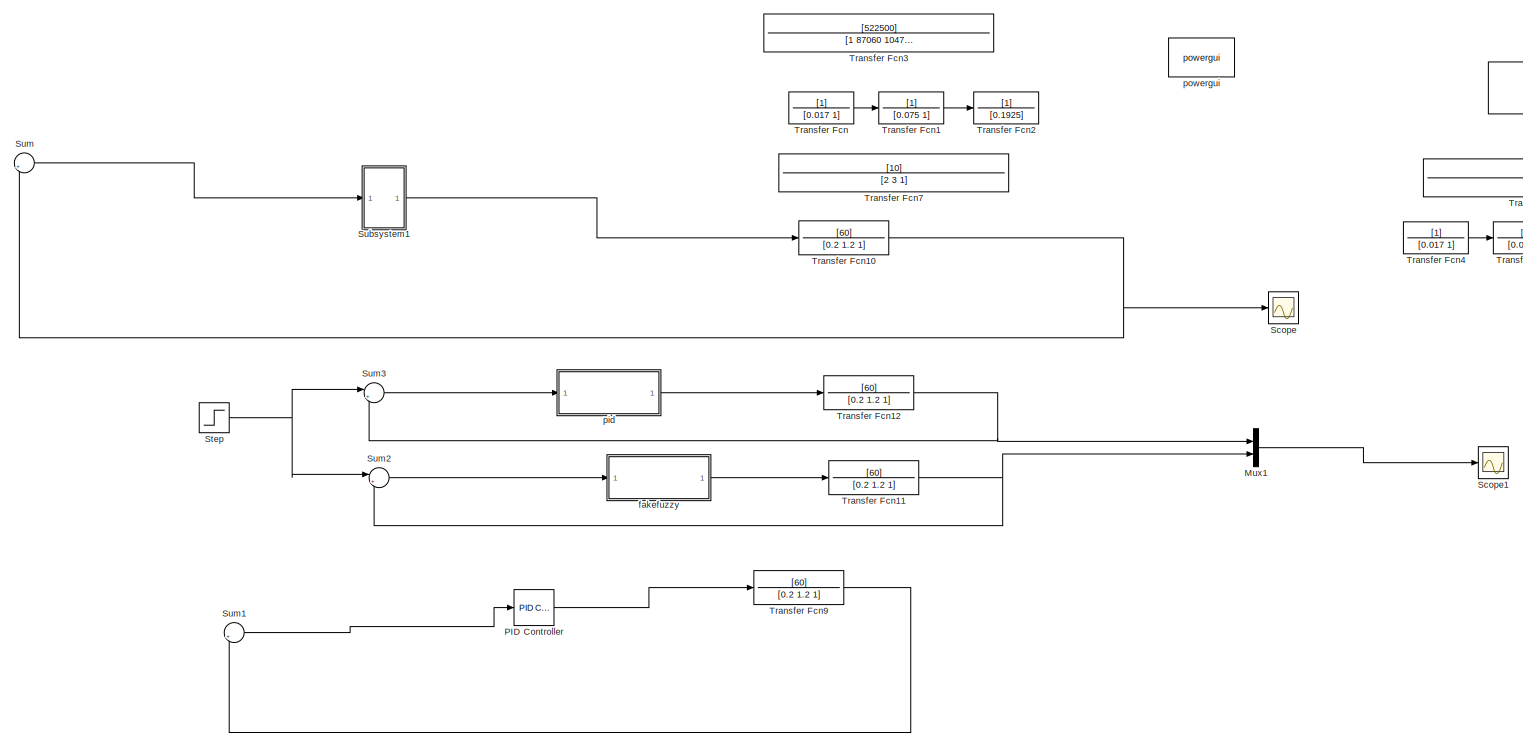
[diagram: root canvas - part 1/2, most of the canvas]
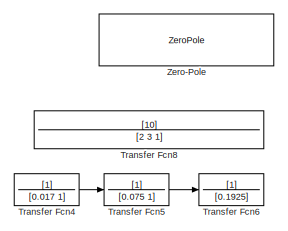
[diagram: root canvas - part 2/2, top right region]
MODEL slx_5aa0a6f4366a
KIND model
BLOCK [Mux] Mux1
  DisplayOption = bar
  Inputs = 2
  Ports = [2, 1]
BLOCK [Reference] PID Controller  REF=simulink/Continuous/PID Controller
  AntiWindupMode = none
  Controller = PID
  D = 0.0111808329497982
  DOutDataTypeStr = Inherit: Inherit via internal rule
  DOutMax = []
  DOutMin = []
  DParamDataTypeStr = Inherit: Inherit via internal rule
  DParamMax = []
  DParamMin = []
  DifferentiatorICPrevScaledInput = 0
  DifferentiatorOutDataTypeStr = Inherit: Inherit via internal rule
  DifferentiatorOutMax = []
  DifferentiatorOutMin = []
  ExternalReset = none
  FilterContinuousStateAttributes = ''
  FilterMethod = Forward Euler
  FilterOutDataTypeStr = Inherit: Inherit via internal rule
  FilterOutMax = []
  FilterOutMin = []
  FilterRTWStateStorageClass = Auto
  FilterStateMustResolveToSignalObject = off
  Form = Parallel
  I = 0.100100462071738
  IOutDataTypeStr = Inherit: Inherit via internal rule
  IOutMax = []
  IOutMin = []
  IParamDataTypeStr = Inherit: Inherit via internal rule
  IParamMax = []
  IParamMin = []
  IgnoreLimit = off
  InitialConditionForFilter = 0
  InitialConditionForIntegrator = 0
  InitialConditionSource = internal
  IntegratorContinuousStateAttributes = ''
  IntegratorMethod = Forward Euler
  IntegratorOutDataTypeStr = Inherit: Inherit via internal rule
  IntegratorOutMax = []
  IntegratorOutMin = []
  IntegratorRTWStateStorageClass = Auto
  IntegratorStateMustResolveToSignalObject = off
  Kb = 1
  KbOutDataTypeStr = Inherit: Inherit via internal rule
  KbOutMax = []
  KbOutMin = []
  KbParamDataTypeStr = Inherit: Inherit via internal rule
  KbParamMax = []
  KbParamMin = []
  Kt = 1
  KtOutDataTypeStr = Inherit: Inherit via internal rule
  KtOutMax = []
  KtOutMin = []
  KtParamDataTypeStr = Inherit: Inherit via internal rule
  KtParamMax = []
  KtParamMin = []
  LimitOutput = off
  LinearizeAsGain = on
  LockScale = off
  LowerSaturationLimit = -inf
  N = 15.1755472667856
  NOutDataTypeStr = Inherit: Inherit via internal rule
  NOutMax = []
  NOutMin = []
  NParamDataTypeStr = Inherit: Inherit via internal rule
  NParamMax = []
  NParamMin = []
  P = 0.117282940590111
  POutDataTypeStr = Inherit: Inherit via internal rule
  POutMax = []
  POutMin = []
  PParamDataTypeStr = Inherit: Inherit via internal rule
  PParamMax = []
  PParamMin = []
  Ports = [1, 1]
  RndMeth = Floor
  SampleTime = -1
  SaturateOnIntegerOverflow = off
  SaturationOutDataTypeStr = Inherit: Same as input
  SaturationOutMax = []
  SaturationOutMin = []
  SourceBlock = simulink/Continuous/PID Controller
  SourceType = PID 1dof
  SumAccumDataTypeStr = Inherit: Inherit via internal rule
  SumDAccumDataTypeStr = Inherit: Inherit via internal rule
  SumDOutDataTypeStr = Inherit: Inherit via internal rule
  SumDOutMax = []
  SumDOutMin = []
  SumI1AccumDataTypeStr = Inherit: Inherit via internal rule
  SumI1OutDataTypeStr = Inherit: Inherit via internal rule
  SumI1OutMax = []
  SumI1OutMin = []
  SumI2AccumDataTypeStr = Inherit: Inherit via internal rule
  SumI2OutDataTypeStr = Inherit: Inherit via internal rule
  SumI2OutMax = []
  SumI2OutMin = []
  SumI3AccumDataTypeStr = Inherit: Inherit via internal rule
  SumI3OutDataTypeStr = Inherit: Inherit via internal rule
  SumI3OutMax = []
  SumI3OutMin = []
  SumOutDataTypeStr = Inherit: Inherit via internal rule
  SumOutMax = []
  SumOutMin = []
  TimeDomain = Continuous-time
  TrackingMode = off
  UpperSaturationLimit = inf
  UseFilter = on
  ZeroCross = on
BLOCK [Scope] Scope
  Floating = off
  NumInputPorts = 1
  Ports = [1]
  ShowLegends = off
  YMax = 4e+129
  YMin = -1.4e+130
BLOCK [Scope] Scope1
  Floating = off
  LimitDataPoints = off
  NumInputPorts = 1
  Ports = [1]
  SaveName = ScopeData1
  ShowLegends = off
  YMax = 60
  YMin = 0
BLOCK [Step] Step
  After = 50
  SampleTime = 0
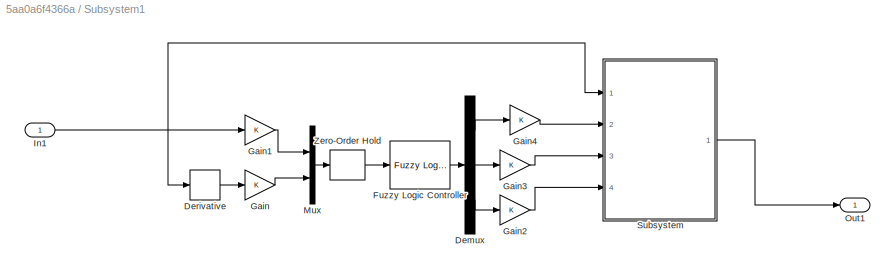
BLOCK [SubSystem] Subsystem1
  Ports = [1, 1]
  RequestExecContextInheritance = off
BLOCK [Demux] Subsystem1/Demux
  DisplayOption = bar
  Outputs = 3
  Ports = [1, 3]
BLOCK [Derivative] Subsystem1/Derivative
BLOCK [Reference] Subsystem1/Fuzzy Logic Controller  REF=fuzblock/Fuzzy Logic   (lib defined in mdl_858b3b3e7478)
Controller
  Ports = [1, 1]
  SourceBlock = fuzblock/Fuzzy Logic \nController
  SourceType = FIS
  fis = fuzzy_1
BLOCK [Gain] Subsystem1/Gain
  OutDataTypeStr = Inherit: Inherit via internal rule
  ParamDataTypeStr = Inherit: Inherit via internal rule
  SaturateOnIntegerOverflow = off
BLOCK [Gain] Subsystem1/Gain1
  OutDataTypeStr = Inherit: Inherit via internal rule
  ParamDataTypeStr = Inherit: Inherit via internal rule
  SaturateOnIntegerOverflow = off
BLOCK [Gain] Subsystem1/Gain2
  OutDataTypeStr = Inherit: Inherit via internal rule
  ParamDataTypeStr = Inherit: Inherit via internal rule
  SaturateOnIntegerOverflow = off
BLOCK [Gain] Subsystem1/Gain3
  OutDataTypeStr = Inherit: Inherit via internal rule
  ParamDataTypeStr = Inherit: Inherit via internal rule
  SaturateOnIntegerOverflow = off
BLOCK [Gain] Subsystem1/Gain4
  OutDataTypeStr = Inherit: Inherit via internal rule
  ParamDataTypeStr = Inherit: Inherit via internal rule
  SaturateOnIntegerOverflow = off
BLOCK [Inport] Subsystem1/In1
  IconDisplay = Port number
BLOCK [Mux] Subsystem1/Mux
  DisplayOption = bar
  Inputs = 2
  Ports = [2, 1]
BLOCK [Outport] Subsystem1/Out1
  IconDisplay = Port number
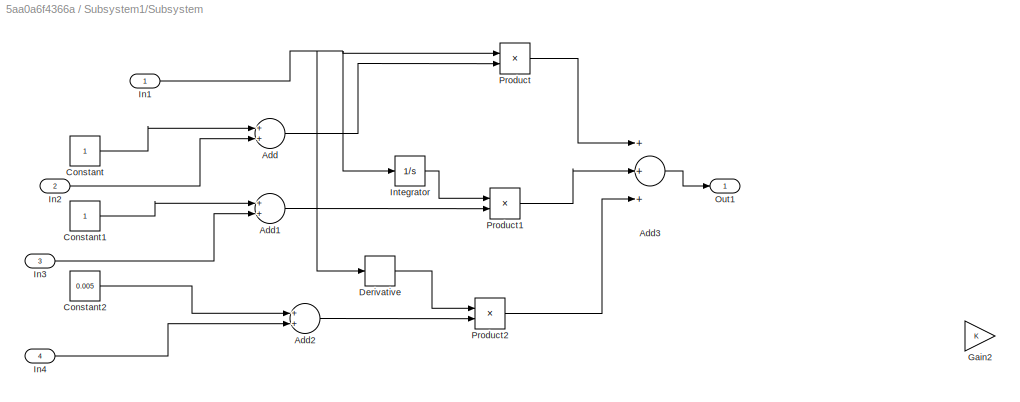
BLOCK [SubSystem] Subsystem1/Subsystem
  Ports = [4, 1]
  RequestExecContextInheritance = off
BLOCK [Sum] Subsystem1/Subsystem/Add
  InputSameDT = off
  OutDataTypeStr = Inherit: Inherit via internal rule
  Ports = [2, 1]
  SaturateOnIntegerOverflow = off
BLOCK [Sum] Subsystem1/Subsystem/Add1
  InputSameDT = off
  OutDataTypeStr = Inherit: Inherit via internal rule
  Ports = [2, 1]
  SaturateOnIntegerOverflow = off
BLOCK [Sum] Subsystem1/Subsystem/Add2
  InputSameDT = off
  OutDataTypeStr = Inherit: Inherit via internal rule
  Ports = [2, 1]
  SaturateOnIntegerOverflow = off
BLOCK [Sum] Subsystem1/Subsystem/Add3
  InputSameDT = off
  Inputs = +++
  OutDataTypeStr = Inherit: Inherit via internal rule
  Ports = [3, 1]
  SaturateOnIntegerOverflow = off
BLOCK [Constant] Subsystem1/Subsystem/Constant
BLOCK [Constant] Subsystem1/Subsystem/Constant1
BLOCK [Constant] Subsystem1/Subsystem/Constant2
  Value = 0.005
BLOCK [Derivative] Subsystem1/Subsystem/Derivative
BLOCK [Gain] Subsystem1/Subsystem/Gain2
  OutDataTypeStr = Inherit: Inherit via internal rule
  ParamDataTypeStr = Inherit: Inherit via internal rule
  SaturateOnIntegerOverflow = off
BLOCK [Inport] Subsystem1/Subsystem/In1
  IconDisplay = Port number
BLOCK [Inport] Subsystem1/Subsystem/In2
  IconDisplay = Port number
  Port = 2
BLOCK [Inport] Subsystem1/Subsystem/In3
  IconDisplay = Port number
  Port = 3
BLOCK [Inport] Subsystem1/Subsystem/In4
  IconDisplay = Port number
  Port = 4
BLOCK [Integrator] Subsystem1/Subsystem/Integrator
  Ports = [1, 1]
BLOCK [Outport] Subsystem1/Subsystem/Out1
  IconDisplay = Port number
BLOCK [Product] Subsystem1/Subsystem/Product
  InputSameDT = off
  OutDataTypeStr = Inherit: Inherit via internal rule
  Ports = [2, 1]
  RndMeth = Floor
  SaturateOnIntegerOverflow = off
BLOCK [Product] Subsystem1/Subsystem/Product1
  InputSameDT = off
  OutDataTypeStr = Inherit: Inherit via internal rule
  Ports = [2, 1]
  RndMeth = Floor
  SaturateOnIntegerOverflow = off
BLOCK [Product] Subsystem1/Subsystem/Product2
  InputSameDT = off
  OutDataTypeStr = Inherit: Inherit via internal rule
  Ports = [2, 1]
  RndMeth = Floor
  SaturateOnIntegerOverflow = off
BLOCK [ZeroOrderHold] Subsystem1/Zero-Order Hold
BLOCK [Sum] Sum
  IconShape = round
  InputSameDT = off
  Inputs = |+-
  OutDataTypeStr = Inherit: Inherit via internal rule
  Ports = [2, 1]
  SaturateOnIntegerOverflow = off
BLOCK [Sum] Sum1
  IconShape = round
  InputSameDT = off
  Inputs = |+-
  OutDataTypeStr = Inherit: Inherit via internal rule
  Ports = [2, 1]
  SaturateOnIntegerOverflow = off
BLOCK [Sum] Sum2
  IconShape = round
  InputSameDT = off
  Inputs = |+-
  OutDataTypeStr = Inherit: Inherit via internal rule
  Ports = [2, 1]
  SaturateOnIntegerOverflow = off
BLOCK [Sum] Sum3
  IconShape = round
  InputSameDT = off
  Inputs = |+-
  OutDataTypeStr = Inherit: Inherit via internal rule
  Ports = [2, 1]
  SaturateOnIntegerOverflow = off
BLOCK [TransferFcn] Transfer Fcn
  Denominator = [0.017 1]
BLOCK [TransferFcn] Transfer Fcn1
  Denominator = [0.075 1]
BLOCK [TransferFcn] Transfer Fcn10
  Denominator = [0.2 1.2 1]
  Numerator = [60]
BLOCK [TransferFcn] Transfer Fcn11
  Denominator = [0.2 1.2 1]
  Numerator = [60]
BLOCK [TransferFcn] Transfer Fcn12
  Denominator = [0.2 1.2 1]
  Numerator = [60]
BLOCK [TransferFcn] Transfer Fcn2
  Denominator = [0.1925]
BLOCK [TransferFcn] Transfer Fcn3
  Denominator = [1 87060 10470 1]
  Numerator = [522500]
BLOCK [TransferFcn] Transfer Fcn4
  Denominator = [0.017 1]
BLOCK [TransferFcn] Transfer Fcn5
  Denominator = [0.075 1]
BLOCK [TransferFcn] Transfer Fcn6
  Denominator = [0.1925]
BLOCK [TransferFcn] Transfer Fcn7
  Denominator = [2 3 1]
  Numerator = [10]
BLOCK [TransferFcn] Transfer Fcn8
  Denominator = [2 3 1]
  Numerator = [10]
BLOCK [TransferFcn] Transfer Fcn9
  Denominator = [0.2 1.2 1]
  Numerator = [60]
BLOCK [ZeroPole] Zero-Pole
  Gain = [10]
  Poles = [-1 -1 -1]
  Zeros = [-0.5]
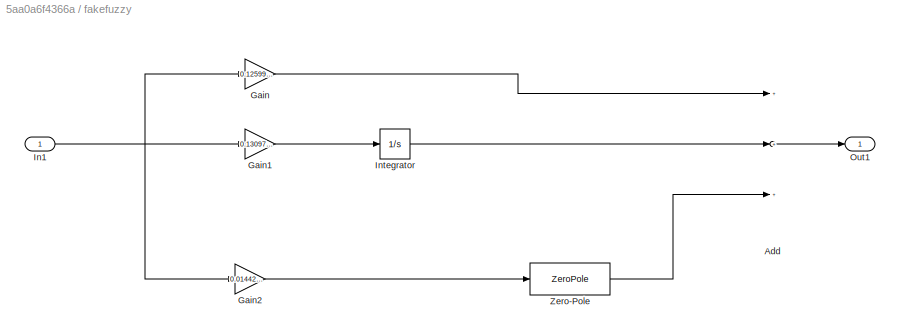
BLOCK [SubSystem] fakefuzzy
  Ports = [1, 1]
  RequestExecContextInheritance = off
BLOCK [Sum] fakefuzzy/Add
  InputSameDT = off
  Inputs = +++
  OutDataTypeStr = Inherit: Inherit via internal rule
  Ports = [3, 1]
  SaturateOnIntegerOverflow = off
BLOCK [Gain] fakefuzzy/Gain
  Gain = 0.125999378247467
  OutDataTypeStr = Inherit: Inherit via internal rule
  ParamDataTypeStr = Inherit: Inherit via internal rule
  SaturateOnIntegerOverflow = off
BLOCK [Gain] fakefuzzy/Gain1
  Gain = 0.130973325909851
  OutDataTypeStr = Inherit: Inherit via internal rule
  ParamDataTypeStr = Inherit: Inherit via internal rule
  SaturateOnIntegerOverflow = off
BLOCK [Gain] fakefuzzy/Gain2
  Gain = 0.0144224814352363
  OutDataTypeStr = Inherit: Inherit via internal rule
  ParamDataTypeStr = Inherit: Inherit via internal rule
  SaturateOnIntegerOverflow = off
BLOCK [Inport] fakefuzzy/In1
  IconDisplay = Port number
BLOCK [Integrator] fakefuzzy/Integrator
  Ports = [1, 1]
BLOCK [Outport] fakefuzzy/Out1
  IconDisplay = Port number
BLOCK [ZeroPole] fakefuzzy/Zero-Pole
  Gain = [32.0224147617823]
  Poles = [-32.0224147617823]
  Zeros = [0]
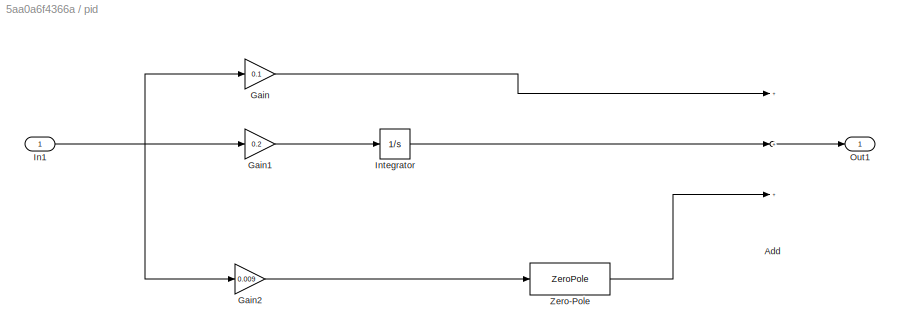
BLOCK [SubSystem] pid
  Ports = [1, 1]
  RequestExecContextInheritance = off
BLOCK [Sum] pid/Add
  InputSameDT = off
  Inputs = +++
  OutDataTypeStr = Inherit: Inherit via internal rule
  Ports = [3, 1]
  SaturateOnIntegerOverflow = off
BLOCK [Gain] pid/Gain
  Gain = 0.1
  OutDataTypeStr = Inherit: Inherit via internal rule
  ParamDataTypeStr = Inherit: Inherit via internal rule
  SaturateOnIntegerOverflow = off
BLOCK [Gain] pid/Gain1
  Gain = 0.2
  OutDataTypeStr = Inherit: Inherit via internal rule
  ParamDataTypeStr = Inherit: Inherit via internal rule
  SaturateOnIntegerOverflow = off
BLOCK [Gain] pid/Gain2
  Gain = 0.009
  OutDataTypeStr = Inherit: Inherit via internal rule
  ParamDataTypeStr = Inherit: Inherit via internal rule
  SaturateOnIntegerOverflow = off
BLOCK [Inport] pid/In1
  IconDisplay = Port number
BLOCK [Integrator] pid/Integrator
  Ports = [1, 1]
BLOCK [Outport] pid/Out1
  IconDisplay = Port number
BLOCK [ZeroPole] pid/Zero-Pole
  Gain = [32.0224147617823]
  Poles = [-32.0224147617823]
  Zeros = [0]
BLOCK [Reference] powergui  REF=powerlib/powergui
  DisableRonSwitches = off
  DisableSnubberDevices = off
  DisableVfSwitches = off
  DisplayEquations = off
  DisplayStyle = 1
  EnableUseOfTLC = off
  ErrMax = 1e-4
  Frange = [0:2:500]
  FreqAxis = off
  FunctionMessages = off
  HookPort = off
  Interpol = off
  Iterations = 50
  MaxFrequency = 1000
  Pbase = 100e6
  Ports = []
  Priority = 1
  ResistiveCurrentMeasurement = off
  RestoreLinks = warning
  RmsSteady = 1
  SPID = off
  SampleTime = 50e-6
  ShowGrid = off
  SolverType = Tustin/Backward Euler (TBE)
  SourceBlock = powerlib/powergui
  SourceType = PSB option menu block
  StartTime = 0.0
  SwTol = 0
  Ts = 100
  UnitsV = kV
  UnitsW = MW
  UserDataPersistent = on
  Xlog = on
  Ylog = off
  ZoomFFT = off
  cycles = 1
  display = off
  echomessages = off
  frequency = 60
  frequencyindice = 60
  frequencyindicesteady = 1
  fundamental = 60
  methode = off
  save = off
  structure = 0
  variable = ZData
  x0status = blocks
LINE Mux1:1 -> Scope1:1
LINE PID Controller:1 -> Transfer Fcn9:1
NET Step:1 -> Sum2:1, Sum3:1
LINE Subsystem1/Demux:1 -> Subsystem1/Gain4:1
LINE Subsystem1/Demux:2 -> Subsystem1/Gain3:1
LINE Subsystem1/Demux:3 -> Subsystem1/Gain2:1
LINE Subsystem1/Derivative:1 -> Subsystem1/Gain:1
LINE Subsystem1/Fuzzy Logic Controller:1 -> Subsystem1/Demux:1
LINE Subsystem1/Gain1:1 -> Subsystem1/Mux:1
LINE Subsystem1/Gain2:1 -> Subsystem1/Subsystem:4
LINE Subsystem1/Gain3:1 -> Subsystem1/Subsystem:3
LINE Subsystem1/Gain4:1 -> Subsystem1/Subsystem:2
LINE Subsystem1/Gain:1 -> Subsystem1/Mux:2
NET Subsystem1/In1:1 -> Subsystem1/Derivative:1, Subsystem1/Gain1:1, Subsystem1/Subsystem:1
LINE Subsystem1/Mux:1 -> Subsystem1/Zero-Order Hold:1
LINE Subsystem1/Subsystem/Add1:1 -> Subsystem1/Subsystem/Product1:2
LINE Subsystem1/Subsystem/Add2:1 -> Subsystem1/Subsystem/Product2:2
LINE Subsystem1/Subsystem/Add3:1 -> Subsystem1/Subsystem/Out1:1
LINE Subsystem1/Subsystem/Add:1 -> Subsystem1/Subsystem/Product:2
LINE Subsystem1/Subsystem/Constant1:1 -> Subsystem1/Subsystem/Add1:1
LINE Subsystem1/Subsystem/Constant2:1 -> Subsystem1/Subsystem/Add2:1
LINE Subsystem1/Subsystem/Constant:1 -> Subsystem1/Subsystem/Add:1
LINE Subsystem1/Subsystem/Derivative:1 -> Subsystem1/Subsystem/Product2:1
NET Subsystem1/Subsystem/In1:1 -> Subsystem1/Subsystem/Derivative:1, Subsystem1/Subsystem/Integrator:1, Subsystem1/Subsystem/Product:1
LINE Subsystem1/Subsystem/In2:1 -> Subsystem1/Subsystem/Add:2
LINE Subsystem1/Subsystem/In3:1 -> Subsystem1/Subsystem/Add1:2
LINE Subsystem1/Subsystem/In4:1 -> Subsystem1/Subsystem/Add2:2
LINE Subsystem1/Subsystem/Integrator:1 -> Subsystem1/Subsystem/Product1:1
LINE Subsystem1/Subsystem/Product1:1 -> Subsystem1/Subsystem/Add3:2
LINE Subsystem1/Subsystem/Product2:1 -> Subsystem1/Subsystem/Add3:3
LINE Subsystem1/Subsystem/Product:1 -> Subsystem1/Subsystem/Add3:1
LINE Subsystem1/Subsystem:1 -> Subsystem1/Out1:1
LINE Subsystem1/Zero-Order Hold:1 -> Subsystem1/Fuzzy Logic Controller:1
LINE Subsystem1:1 -> Transfer Fcn10:1
LINE Sum1:1 -> PID Controller:1
LINE Sum2:1 -> fakefuzzy:1
LINE Sum3:1 -> pid:1
LINE Sum:1 -> Subsystem1:1
NET Transfer Fcn10:1 -> Scope:1, Sum:2
NET Transfer Fcn11:1 -> Mux1:2, Sum2:2
NET Transfer Fcn12:1 -> Mux1:1, Sum3:2
LINE Transfer Fcn1:1 -> Transfer Fcn2:1
LINE Transfer Fcn4:1 -> Transfer Fcn5:1
LINE Transfer Fcn5:1 -> Transfer Fcn6:1
LINE Transfer Fcn9:1 -> Sum1:2
LINE Transfer Fcn:1 -> Transfer Fcn1:1
LINE fakefuzzy/Add:1 -> fakefuzzy/Out1:1
LINE fakefuzzy/Gain1:1 -> fakefuzzy/Integrator:1
LINE fakefuzzy/Gain2:1 -> fakefuzzy/Zero-Pole:1
LINE fakefuzzy/Gain:1 -> fakefuzzy/Add:1
NET fakefuzzy/In1:1 -> fakefuzzy/Gain1:1, fakefuzzy/Gain2:1, fakefuzzy/Gain:1
LINE fakefuzzy/Integrator:1 -> fakefuzzy/Add:2
LINE fakefuzzy/Zero-Pole:1 -> fakefuzzy/Add:3
LINE fakefuzzy:1 -> Transfer Fcn11:1
LINE pid/Add:1 -> pid/Out1:1
LINE pid/Gain1:1 -> pid/Integrator:1
LINE pid/Gain2:1 -> pid/Zero-Pole:1
LINE pid/Gain:1 -> pid/Add:1
NET pid/In1:1 -> pid/Gain1:1, pid/Gain2:1, pid/Gain:1
LINE pid/Integrator:1 -> pid/Add:2
LINE pid/Zero-Pole:1 -> pid/Add:3
LINE pid:1 -> Transfer Fcn12:1
note: NET lines group one-source signal fan-out (src -> all destinations, sorted); 1:1 wires keep LINE
